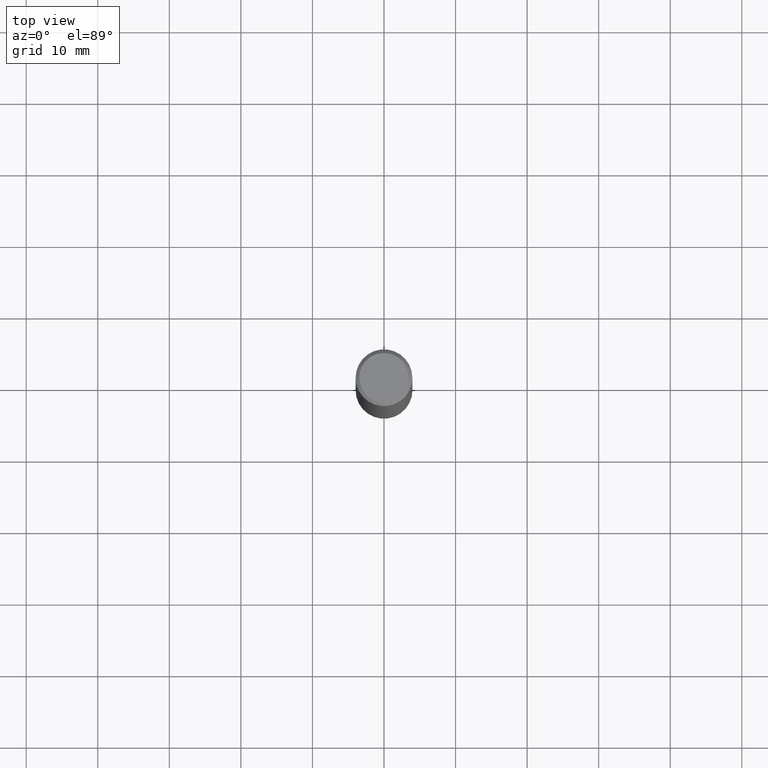
[diagram: clean part render]
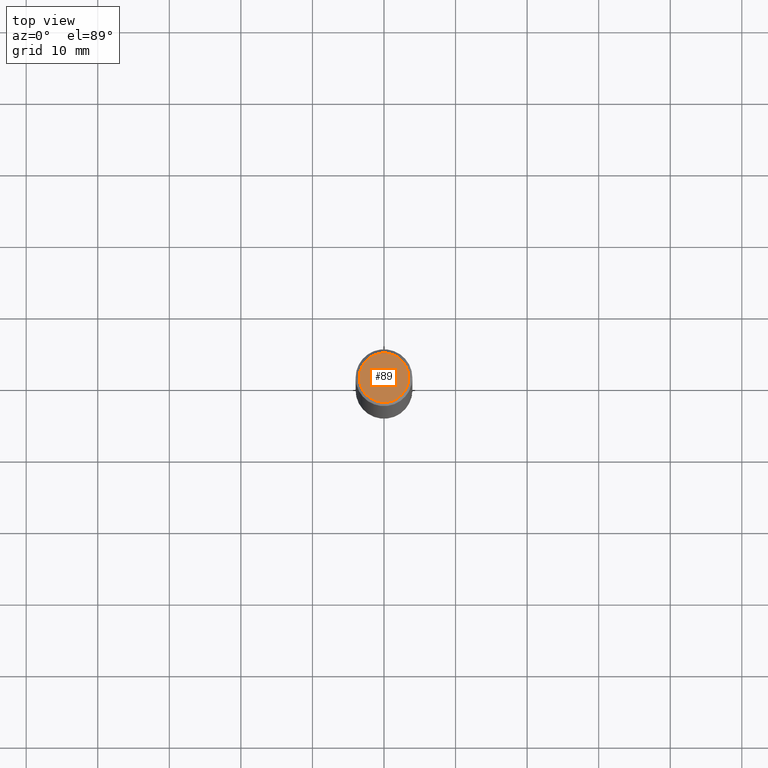
[diagram: same view with one face highlighted and labeled with its STEP entity id]
A machine part, top view. The second image highlights one B-rep face of the part: STEP entity #89.
In plain terms, the highlighted planar face has unit normal (0, -0, -1).
Its self-contained STEP definition (entity closure, byte-faithful):
#13 = CARTESIAN_POINT ( 'NONE',  ( 0.1362499999999997879, -1.038262645562516547E-15, 6.957025900226685266E-30 ) ) ;
#19 = EDGE_CURVE ( 'NONE', #33, #153, #358, .T. ) ;
#33 = VERTEX_POINT ( 'NONE', #376 ) ;
#53 = EDGE_LOOP ( 'NONE', ( #323, #375 ) ) ;
#89 = ADVANCED_FACE ( 'NONE', ( #442 ), #282, .F. ) ;
#90 = AXIS2_PLACEMENT_3D ( 'NONE', #415, #108, #242 ) ;
#103 = DIRECTION ( 'NONE',  ( 2.438088387897960049E-29, -3.491481338843145188E-15, -1.000000000000000000 ) ) ;
#108 = DIRECTION ( 'NONE',  ( -2.445468806185136597E-29, 3.491481338843145583E-15, 1.000000000000000000 ) ) ;
#148 = CARTESIAN_POINT ( 'NONE',  ( 0.000000000000000000, 0.000000000000000000, 0.000000000000000000 ) ) ;
#153 = VERTEX_POINT ( 'NONE', #13 ) ;
#156 = EDGE_CURVE ( 'NONE', #153, #33, #374, .T. ) ;
#185 = AXIS2_PLACEMENT_3D ( 'NONE', #148, #422, #387 ) ;
#201 = AXIS2_PLACEMENT_3D ( 'NONE', #277, #103, #203 ) ;
#203 = DIRECTION ( 'NONE',  ( -1.000000000000000000, 6.982962677686265922E-15, -4.876176775795935793E-29 ) ) ;
#242 = DIRECTION ( 'NONE',  ( 1.000000000000000000, -6.982962677686266711E-15, 4.876176775795935232E-29 ) ) ;
#277 = CARTESIAN_POINT ( 'NONE',  ( 9.514286648347523799E-16, 0.1362499999999997879, -4.757143324173778663E-16 ) ) ;
#282 = PLANE ( 'NONE',  #201 ) ;
#323 = ORIENTED_EDGE ( 'NONE', *, *, #19, .T. ) ;
#358 = CIRCLE ( 'NONE', #90, 0.1362499999999997879 ) ;
#374 = CIRCLE ( 'NONE', #185, 0.1362499999999997879 ) ;
#375 = ORIENTED_EDGE ( 'NONE', *, *, #156, .T. ) ;
#376 = CARTESIAN_POINT ( 'NONE',  ( -0.1362499999999997879, 9.863434782231836346E-16, -6.775751096333128673E-30 ) ) ;
#387 = DIRECTION ( 'NONE',  ( 1.000000000000000000, -6.982962677686266711E-15, 4.876176775795935232E-29 ) ) ;
#415 = CARTESIAN_POINT ( 'NONE',  ( 0.000000000000000000, 0.000000000000000000, 0.000000000000000000 ) ) ;
#422 = DIRECTION ( 'NONE',  ( -2.445468806185136597E-29, 3.491481338843145583E-15, 1.000000000000000000 ) ) ;
#442 = FACE_OUTER_BOUND ( 'NONE', #53, .T. ) ;